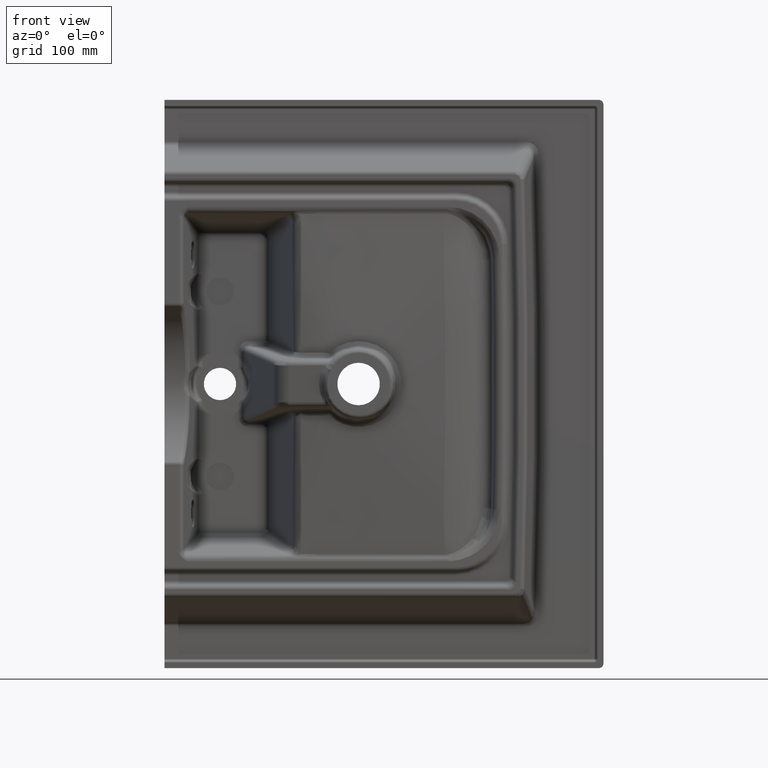
[diagram: clean part render]
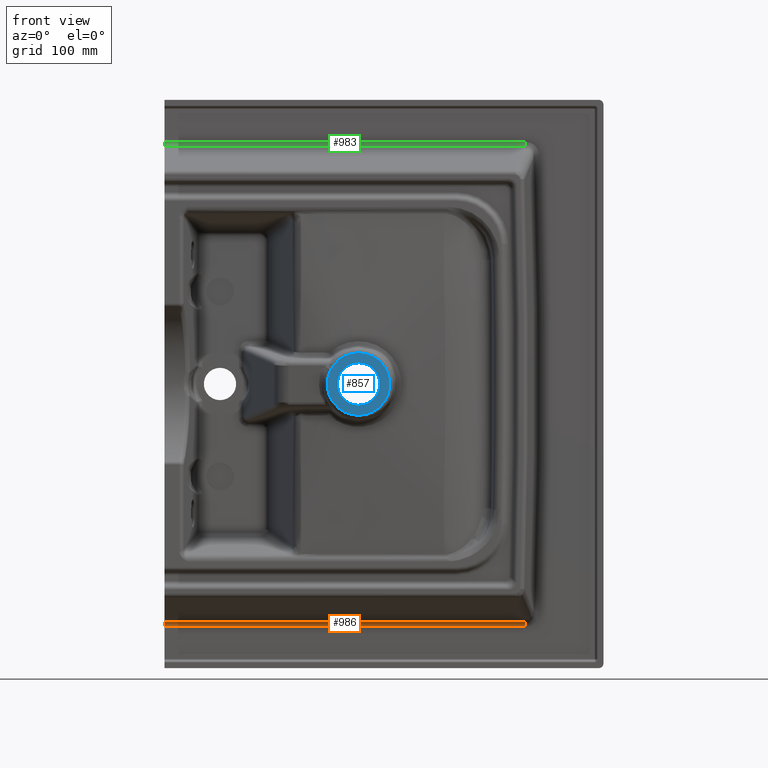
[diagram: same view with three faces highlighted in distinct colors, each labeled with its STEP entity id]
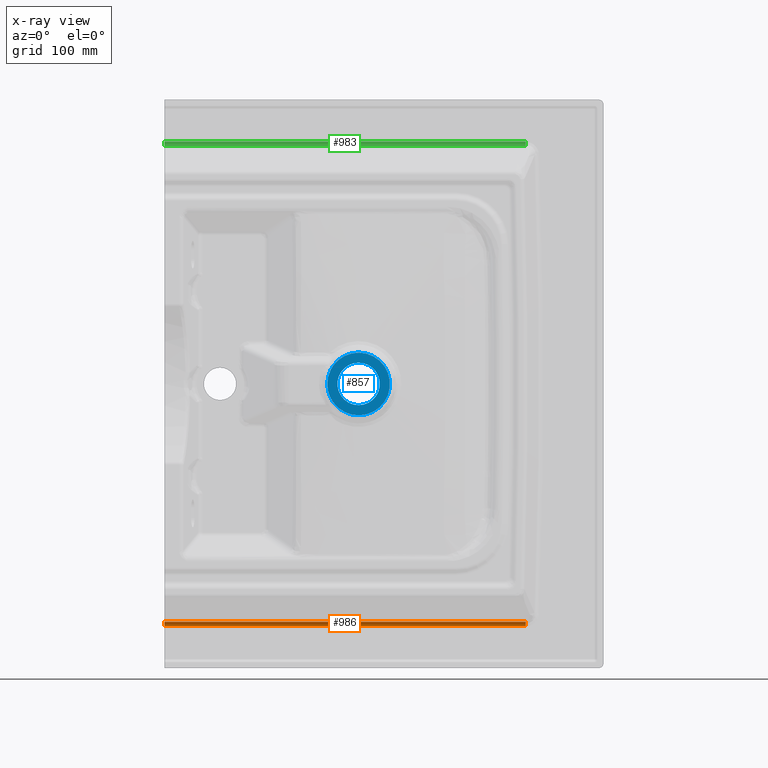
[diagram: x-ray of the same camera — body ghosted, the three highlighted faces saturated]
A machine part, front view with three faces highlighted in distinct colors.
The next image is the same camera in x-ray (body ghosted, the three faces saturated) — at least one of them is partly hidden behind the body in this view.
Their STEP definitions:

[orange] entity #986 — the highlighted cylindrical surface (edge-blend (fillet) strip) has radius 5 mm, axis along (1, 0, 0).
#172=CYLINDRICAL_SURFACE('',#4612,5.);
#508=LINE('',#8171,#691);
#577=LINE('',#9710,#760);
#691=VECTOR('',#4942,1.);
#760=VECTOR('',#5175,1.);
#986=ADVANCED_FACE('',(#1348),#172,.F.);
#1348=FACE_OUTER_BOUND('',#1620,.T.);
#1620=EDGE_LOOP('',(#2742,#2743,#2744,#2745));
#1803=CIRCLE('',#4427,5.);
#1900=CIRCLE('',#4611,5.);
#2742=ORIENTED_EDGE('',*,*,#3837,.F.);
#2743=ORIENTED_EDGE('',*,*,#3759,.F.);
#2744=ORIENTED_EDGE('',*,*,#4081,.F.);
#2745=ORIENTED_EDGE('',*,*,#3925,.F.);
#3362=VERTEX_POINT('',#8170);
#3363=VERTEX_POINT('',#8172);
#3435=VERTEX_POINT('',#8593);
#3492=VERTEX_POINT('',#9707);
#3759=EDGE_CURVE('',#3362,#3363,#508,.T.);
#3837=EDGE_CURVE('',#3363,#3435,#1803,.T.);
#3925=EDGE_CURVE('',#3435,#3492,#577,.T.);
#4081=EDGE_CURVE('',#3492,#3362,#1900,.T.);
#4427=AXIS2_PLACEMENT_3D('',#8592,#5039,#5040);
#4611=AXIS2_PLACEMENT_3D('',#11150,#5472,#5473);
#4612=AXIS2_PLACEMENT_3D('',#11151,#5474,#5475);
#4942=DIRECTION('',(-1.,0.,0.));
#5039=DIRECTION('',(1.,0.,0.));
#5040=DIRECTION('',(0.,0.,1.));
#5175=DIRECTION('',(1.,0.,0.));
#5472=DIRECTION('',(-1.,0.,0.));
#5473=DIRECTION('',(0.,0.,1.));
#5474=DIRECTION('',(1.,0.,0.));
#5475=DIRECTION('',(0.,0.,-1.));
#8170=CARTESIAN_POINT('',(153.262739426105,-18.,-262.171151967849));
#8171=CARTESIAN_POINT('',(-237.5,-18.,-262.171151967849));
#8172=CARTESIAN_POINT('',(-237.5,-18.,-262.171151967849));
#8592=CARTESIAN_POINT('',(-237.5,-23.,-262.171151967849));
#8593=CARTESIAN_POINT('',(-237.5,-21.5381414763863,-257.389628188034));
#9707=CARTESIAN_POINT('',(153.262739426105,-21.5381414763863,-257.389628188034));
#9710=CARTESIAN_POINT('',(163.055424887894,-21.5381414763863,-257.389628188034));
#11150=CARTESIAN_POINT('',(153.262739426105,-23.,-262.171151967849));
#11151=CARTESIAN_POINT('',(237.5,-23.,-262.171151967849));

[blue] entity #857 — the highlighted planar face has unit normal (0, 1, 0).
#227=PLANE('',#4397);
#279=FACE_BOUND('',#1484,.T.);
#280=FACE_BOUND('',#1485,.T.);
#344=B_SPLINE_CURVE_WITH_KNOTS('',3,(#8120,#8121,#8122,#8123),
 .UNSPECIFIED.,.F.,.F.,(4,4),(0.,1.),.UNSPECIFIED.);
#345=B_SPLINE_CURVE_WITH_KNOTS('',3,(#8128,#8129,#8130,#8131),
 .UNSPECIFIED.,.F.,.F.,(4,4),(0.,1.),.UNSPECIFIED.);
#346=B_SPLINE_CURVE_WITH_KNOTS('',3,(#8133,#8134,#8135,#8136,#8137,#8138,
#8139,#8140,#8141,#8142),.UNSPECIFIED.,.F.,.F.,(4,2,2,2,4),(0.,0.25,0.5,
0.75,1.),.UNSPECIFIED.);
#857=ADVANCED_FACE('',(#279,#280),#227,.F.);
#1484=EDGE_LOOP('',(#2103,#2104,#2105,#2106));
#1485=EDGE_LOOP('',(#2107));
#1779=CIRCLE('',#4395,33.8983838228087);
#1780=CIRCLE('',#4396,23.);
#2103=ORIENTED_EDGE('',*,*,#3747,.T.);
#2104=ORIENTED_EDGE('',*,*,#3748,.T.);
#2105=ORIENTED_EDGE('',*,*,#3749,.T.);
#2106=ORIENTED_EDGE('',*,*,#3750,.T.);
#2107=ORIENTED_EDGE('',*,*,#3751,.F.);
#3350=VERTEX_POINT('',#8124);
#3351=VERTEX_POINT('',#8125);
#3352=VERTEX_POINT('',#8127);
#3353=VERTEX_POINT('',#8132);
#3354=VERTEX_POINT('',#8144);
#3747=EDGE_CURVE('',#3350,#3351,#344,.T.);
#3748=EDGE_CURVE('',#3351,#3352,#1779,.T.);
#3749=EDGE_CURVE('',#3352,#3353,#345,.T.);
#3750=EDGE_CURVE('',#3353,#3350,#346,.T.);
#3751=EDGE_CURVE('',#3354,#3354,#1780,.T.);
#4395=AXIS2_PLACEMENT_3D('',#8126,#4930,#4931);
#4396=AXIS2_PLACEMENT_3D('',#8143,#4932,#4933);
#4397=AXIS2_PLACEMENT_3D('',#8145,#4934,#4935);
#4930=DIRECTION('',(0.,-1.,0.));
#4931=DIRECTION('',(0.,0.,1.));
#4932=DIRECTION('',(0.,-1.,0.));
#4933=DIRECTION('',(0.,0.,-1.));
#4934=DIRECTION('',(0.,1.,0.));
#4935=DIRECTION('',(0.,0.,1.));
#8120=CARTESIAN_POINT('',(-57.7512442572098,-151.,-15.4327170808342));
#8121=CARTESIAN_POINT('',(-56.9589360796423,-151.,-17.0251416308132));
#8122=CARTESIAN_POINT('',(-55.9644553479367,-151.,-18.4938718867024));
#8123=CARTESIAN_POINT('',(-54.9213380797616,-151.,-19.9291405663636));
#8124=CARTESIAN_POINT('',(-57.7512442572098,-151.,-15.4327170808342));
#8125=CARTESIAN_POINT('',(-54.9213380797616,-151.,-19.9291405663635));
#8126=CARTESIAN_POINT('',(-27.5,-151.,0.));
#8127=CARTESIAN_POINT('',(-54.9213380797616,-151.,19.9291405663636));
#8128=CARTESIAN_POINT('',(-54.9213380797616,-151.,19.9291405663636));
#8129=CARTESIAN_POINT('',(-55.9648137092164,-151.,18.4933788024286));
#8130=CARTESIAN_POINT('',(-56.9584003032743,-151.,17.0262184636238));
#8131=CARTESIAN_POINT('',(-57.7512442572098,-151.,15.4327170808342));
#8132=CARTESIAN_POINT('',(-57.7512442572098,-151.,15.4327170808342));
#8133=CARTESIAN_POINT('',(-57.7512442572098,-151.,15.4327170808342));
#8134=CARTESIAN_POINT('',(-58.9486921371892,-151.,13.0260204754127));
#8135=CARTESIAN_POINT('',(-59.8577367268719,-151.,10.5242871477786));
#8136=CARTESIAN_POINT('',(-61.0923000069616,-151.,5.3285328499657));
#8137=CARTESIAN_POINT('',(-61.4055397579326,-151.,2.64883766228383));
#8138=CARTESIAN_POINT('',(-61.4055051782228,-151.,-2.64928359443884));
#8139=CARTESIAN_POINT('',(-61.0920151212837,-151.,-5.33003919690298));
#8140=CARTESIAN_POINT('',(-59.8575964106372,-151.,-10.5245701898143));
#8141=CARTESIAN_POINT('',(-58.9486883607744,-151.,-13.0260280654587));
#8142=CARTESIAN_POINT('',(-57.7512442572098,-151.,-15.4327170808342));
#8143=CARTESIAN_POINT('',(-27.5,-151.,0.));
#8144=CARTESIAN_POINT('',(-27.5,-151.,-23.));
#8145=CARTESIAN_POINT('',(-27.5,-151.,0.));

[green] entity #983 — the highlighted cylindrical surface (edge-blend (fillet) strip) has radius 5 mm, axis along (-1, 0, 0).
#171=CYLINDRICAL_SURFACE('',#4607,5.);
#507=LINE('',#8153,#690);
#579=LINE('',#9737,#762);
#690=VECTOR('',#4939,1.);
#762=VECTOR('',#5187,1.);
#983=ADVANCED_FACE('',(#1345),#171,.F.);
#1345=FACE_OUTER_BOUND('',#1617,.T.);
#1617=EDGE_LOOP('',(#2730,#2731,#2732,#2733));
#1796=CIRCLE('',#4420,5.);
#1897=CIRCLE('',#4606,5.);
#2730=ORIENTED_EDGE('',*,*,#3826,.F.);
#2731=ORIENTED_EDGE('',*,*,#3932,.F.);
#2732=ORIENTED_EDGE('',*,*,#4078,.F.);
#2733=ORIENTED_EDGE('',*,*,#3755,.F.);
#3358=VERTEX_POINT('',#8152);
#3359=VERTEX_POINT('',#8154);
#3426=VERTEX_POINT('',#8572);
#3499=VERTEX_POINT('',#9736);
#3755=EDGE_CURVE('',#3358,#3359,#507,.T.);
#3826=EDGE_CURVE('',#3426,#3358,#1796,.T.);
#3932=EDGE_CURVE('',#3499,#3426,#579,.T.);
#4078=EDGE_CURVE('',#3359,#3499,#1897,.T.);
#4420=AXIS2_PLACEMENT_3D('',#8573,#5021,#5022);
#4606=AXIS2_PLACEMENT_3D('',#11115,#5462,#5463);
#4607=AXIS2_PLACEMENT_3D('',#11116,#5464,#5465);
#4939=DIRECTION('',(1.,0.,0.));
#5021=DIRECTION('',(1.,0.,0.));
#5022=DIRECTION('',(0.,0.,1.));
#5187=DIRECTION('',(-1.,0.,0.));
#5462=DIRECTION('',(-1.,0.,0.));
#5463=DIRECTION('',(0.,0.,1.));
#5464=DIRECTION('',(-1.,0.,0.));
#5465=DIRECTION('',(0.,0.,1.));
#8152=CARTESIAN_POINT('',(-237.5,-18.,262.171151967849));
#8153=CARTESIAN_POINT('',(163.055424887898,-18.,262.171151967849));
#8154=CARTESIAN_POINT('',(153.262739426104,-18.,262.171151967849));
#8572=CARTESIAN_POINT('',(-237.5,-21.5381414763862,257.389628188034));
#8573=CARTESIAN_POINT('',(-237.5,-23.,262.171151967849));
#9736=CARTESIAN_POINT('',(153.262739426104,-21.5381414763863,257.389628188034));
#9737=CARTESIAN_POINT('',(-237.5,-21.5381414763863,257.389628188034));
#11115=CARTESIAN_POINT('',(153.262739426104,-23.,262.171151967849));
#11116=CARTESIAN_POINT('',(237.5,-23.,262.171151967849));